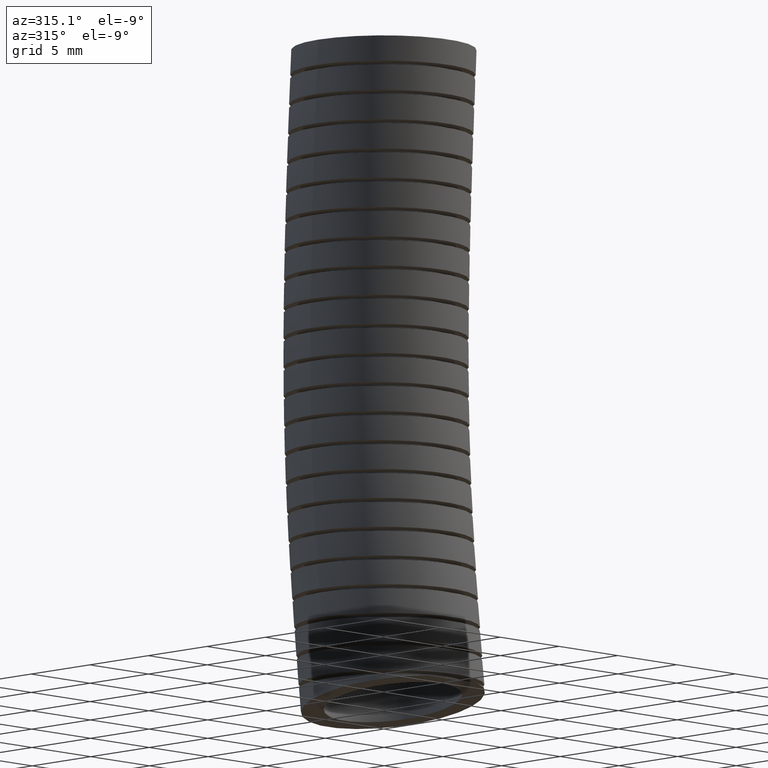
[diagram: clean part render]
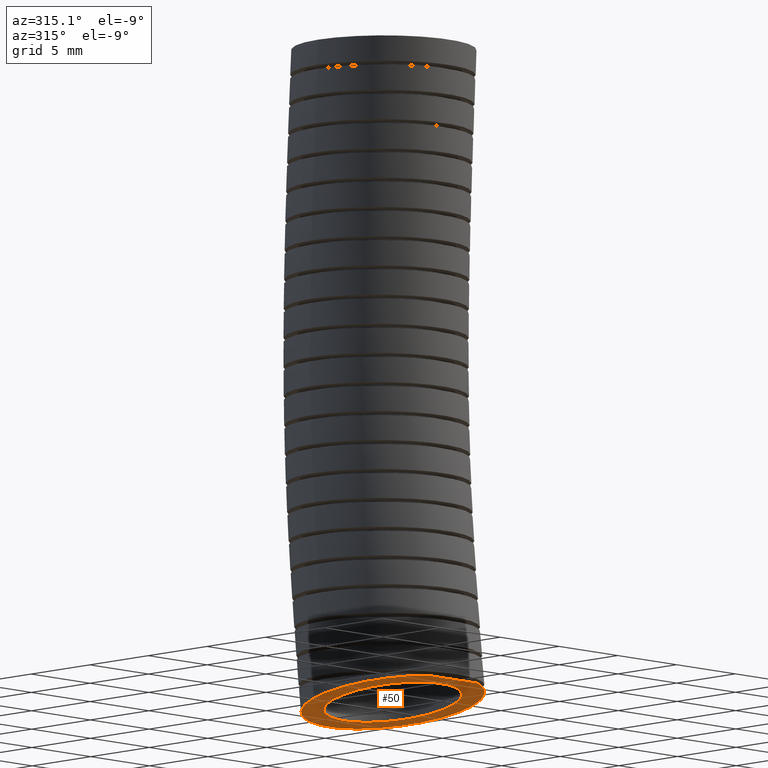
[diagram: same view with one face highlighted and labeled with its STEP entity id]
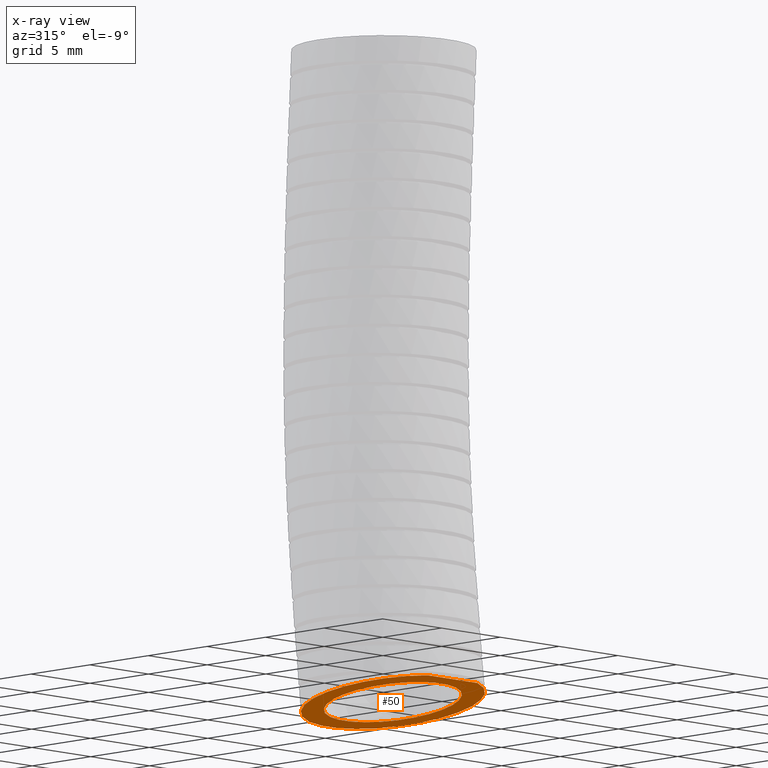
[diagram: x-ray of the same camera — body ghosted, the highlighted face saturated]
A machine part, auxiliary view. The second image highlights one B-rep face of the part: STEP entity #50.
The next image is the same camera in x-ray: the body ghosted, the highlighted face saturated — about 0% of this face is hidden behind the body in this view.
In plain terms, the highlighted planar face has unit normal (0, 0.1603, 0.9871).
Its self-contained STEP definition (entity closure, byte-faithful):
#9 = EDGE_LOOP ( 'NONE', ( #56, #81 ) ) ;
#21 = EDGE_CURVE ( 'NONE', #5657, #5660, #819, .T. ) ;
#28 = EDGE_CURVE ( 'NONE', #142, #5667, #975, .T. ) ;
#50 = ADVANCED_FACE ( 'NONE', ( #1201, #1204 ), #1352, .F. ) ;
#54 = EDGE_LOOP ( 'NONE', ( #140, #55, #141, #128 ) ) ;
#55 = ORIENTED_EDGE ( 'NONE', *, *, #21, .F. ) ;
#56 = ORIENTED_EDGE ( 'NONE', *, *, #11754, .T. ) ;
#81 = ORIENTED_EDGE ( 'NONE', *, *, #130, .T. ) ;
#96 = EDGE_CURVE ( 'NONE', #5660, #142, #2380, .T. ) ;
#128 = ORIENTED_EDGE ( 'NONE', *, *, #28, .F. ) ;
#130 = EDGE_CURVE ( 'NONE', #11706, #11755, #2840, .T. ) ;
#140 = ORIENTED_EDGE ( 'NONE', *, *, #96, .F. ) ;
#141 = ORIENTED_EDGE ( 'NONE', *, *, #5673, .F. ) ;
#142 = VERTEX_POINT ( 'NONE', #3062 ) ;
#813 = CARTESIAN_POINT ( 'NONE',  ( 0.0000000000000000000, -0.02999999999999999500, -1.569999999999999800 ) ) ;
#815 = DIRECTION ( 'NONE',  ( 1.000000000000000000, 0.0000000000000000000, 0.0000000000000000000 ) ) ;
#816 = DIRECTION ( 'NONE',  ( 0.0000000000000000000, 0.1603418094754381400, 0.9870615503271020800 ) ) ;
#817 = CARTESIAN_POINT ( 'NONE',  ( 0.0000000000000000000, -0.02999999999999999500, -1.569999999999999800 ) ) ;
#818 = AXIS2_PLACEMENT_3D ( 'NONE', #817, #816, #815 ) ;
#819 = CIRCLE ( 'NONE', #818, 0.2199999999999999700 ) ;
#841 = DIRECTION ( 'NONE',  ( 1.000000000000000000, 0.0000000000000000000, 0.0000000000000000000 ) ) ;
#842 = DIRECTION ( 'NONE',  ( 0.0000000000000000000, 0.1603418094754381400, 0.9870615503271020800 ) ) ;
#843 = AXIS2_PLACEMENT_3D ( 'NONE', #813, #842, #841 ) ;
#975 = CIRCLE ( 'NONE', #843, 0.2199999999999999700 ) ;
#1201 = FACE_BOUND ( 'NONE', #9, .T. ) ;
#1204 = FACE_OUTER_BOUND ( 'NONE', #54, .T. ) ;
#1348 = DIRECTION ( 'NONE',  ( 1.000000000000000000, 0.0000000000000000000, 0.0000000000000000000 ) ) ;
#1349 = DIRECTION ( 'NONE',  ( 0.0000000000000000000, 0.1603418094754381400, 0.9870615503271020800 ) ) ;
#1350 = CARTESIAN_POINT ( 'NONE',  ( 0.0000000000000000000, -0.02999999999999999500, -1.569999999999999800 ) ) ;
#1351 = AXIS2_PLACEMENT_3D ( 'NONE', #1350, #1349, #1348 ) ;
#1352 = PLANE ( 'NONE',  #1351 ) ;
#2377 = DIRECTION ( 'NONE',  ( 1.000000000000000000, 0.0000000000000000000, 0.0000000000000000000 ) ) ;
#2378 = VECTOR ( 'NONE', #2377, 39.37007874015748100 ) ;
#2379 = CARTESIAN_POINT ( 'NONE',  ( 0.0000000000000000000, -0.2308739700426188400, -1.537369313674030700 ) ) ;
#2380 = LINE ( 'NONE', #2379, #2378 ) ;
#2837 = DIRECTION ( 'NONE',  ( 1.000000000000000000, 0.0000000000000000000, 0.0000000000000000000 ) ) ;
#2838 = DIRECTION ( 'NONE',  ( 0.0000000000000000000, 0.1603418094754381400, 0.9870615503271020800 ) ) ;
#2839 = AXIS2_PLACEMENT_3D ( 'NONE', #2927, #2838, #2837 ) ;
#2840 = CIRCLE ( 'NONE', #2839, 0.1650000000000000100 ) ;
#2927 = CARTESIAN_POINT ( 'NONE',  ( 0.0000000000000000000, -0.02999999999999999500, -1.569999999999999800 ) ) ;
#3062 = CARTESIAN_POINT ( 'NONE',  ( 0.08357563322651684300, -0.2308739700426188400, -1.537369313674030700 ) ) ;
#5657 = VERTEX_POINT ( 'NONE', #7546 ) ;
#5660 = VERTEX_POINT ( 'NONE', #7895 ) ;
#5667 = VERTEX_POINT ( 'NONE', #7878 ) ;
#5673 = EDGE_CURVE ( 'NONE', #5667, #5657, #7856, .T. ) ;
#7546 = CARTESIAN_POINT ( 'NONE',  ( -0.2199999999999999700, -0.02999999999999996100, -1.569999999999999800 ) ) ;
#7680 = CARTESIAN_POINT ( 'NONE',  ( 0.0000000000000000000, -0.02999999999999999500, -1.569999999999999800 ) ) ;
#7855 = AXIS2_PLACEMENT_3D ( 'NONE', #7680, #8108, #8035 ) ;
#7856 = CIRCLE ( 'NONE', #7855, 0.2199999999999999700 ) ;
#7878 = CARTESIAN_POINT ( 'NONE',  ( 0.2199999999999999700, -0.02999999999999998800, -1.569999999999999800 ) ) ;
#7895 = CARTESIAN_POINT ( 'NONE',  ( -0.08357563322651684300, -0.2308739700426188400, -1.537369313674030700 ) ) ;
#8035 = DIRECTION ( 'NONE',  ( 1.000000000000000000, 0.0000000000000000000, 0.0000000000000000000 ) ) ;
#8108 = DIRECTION ( 'NONE',  ( 0.0000000000000000000, 0.1603418094754381400, 0.9870615503271020800 ) ) ;
#10607 = CARTESIAN_POINT ( 'NONE',  ( -0.1650000000000000100, -0.02999999999999996800, -1.569999999999999800 ) ) ;
#10975 = DIRECTION ( 'NONE',  ( 1.000000000000000000, 0.0000000000000000000, 0.0000000000000000000 ) ) ;
#10976 = DIRECTION ( 'NONE',  ( 0.0000000000000000000, 0.1603418094754381400, 0.9870615503271020800 ) ) ;
#10977 = AXIS2_PLACEMENT_3D ( 'NONE', #10991, #10976, #10975 ) ;
#10978 = CIRCLE ( 'NONE', #10977, 0.1650000000000000100 ) ;
#10991 = CARTESIAN_POINT ( 'NONE',  ( 0.0000000000000000000, -0.02999999999999999500, -1.569999999999999800 ) ) ;
#11094 = CARTESIAN_POINT ( 'NONE',  ( 0.1650000000000000100, -0.02999999999999999500, -1.569999999999999800 ) ) ;
#11706 = VERTEX_POINT ( 'NONE', #10607 ) ;
#11754 = EDGE_CURVE ( 'NONE', #11755, #11706, #10978, .T. ) ;
#11755 = VERTEX_POINT ( 'NONE', #11094 ) ;